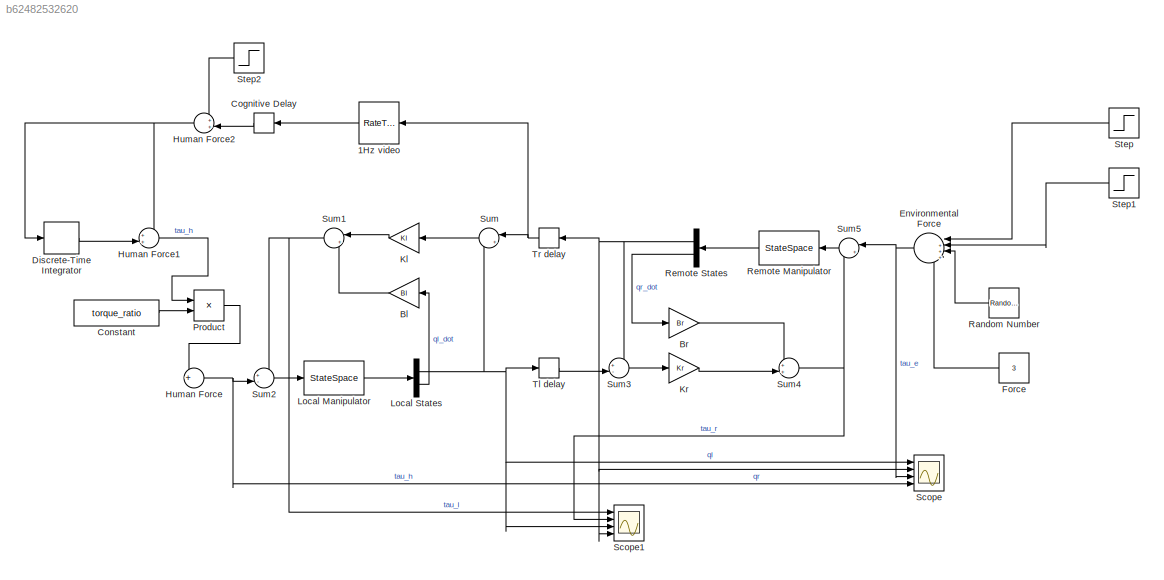
MODEL slx_b62482532620
KIND model
CONFIG AbsTol = auto
CONFIG EnableMultiTasking = off
CONFIG FixedStep = auto
CONFIG MaxStep = auto
CONFIG MinStep = auto
CONFIG RelTol = 1e-3
CONFIG SampleTimeConstraint = Unconstrained
CONFIG SolverName = VariableStepAuto
CONFIG StartTime = 0.0
CONFIG StopTime = 200
BLOCK [RateTransition] 1Hz video
  OutPortSampleTime = 1
BLOCK [Gain] Bl
  Gain = Bl
BLOCK [Gain] Br
  Gain = Br
BLOCK [TransportDelay] Cognitive Delay
  DelayTime = .5
  Ports = [1, 1]
BLOCK [Constant] Constant
  Value = torque_ratio
BLOCK [DiscreteIntegrator] Discrete-Time Integrator
  ICPrevOutput = DiscIntNeverNeededParam
  ICPrevScaledInput = DiscIntNeverNeededParam
  InitialConditionSetting = Auto
  Ports = [1, 1]
  gainval = .025
BLOCK [Sum] Environmental Force
  Inputs = |++++
  NameLocation = top
  Ports = [4, 1]
BLOCK [Constant] Force
  Value = 3
BLOCK [Sum] Human Force
  Inputs = +|
  Ports = [1, 1]
BLOCK [Sum] Human Force1
  Inputs = ++|
  Ports = [2, 1]
BLOCK [Sum] Human Force2
  Inputs = ++|
  Ports = [2, 1]
BLOCK [Gain] Kl
  Gain = Kl
BLOCK [Gain] Kr
  Gain = Kr
BLOCK [StateSpace] Local Manipulator
  A = A
  B = B
  C = C
  D = D
  InitialCondition = 0
  Ports = [1, 1]
BLOCK [Demux] Local States
  Outputs = 2
  Ports = [1, 2]
BLOCK [Product] Product
  Ports = [2, 1]
BLOCK [RandomNumber] Random Number
  SampleTime = 0.1
  Seed = 6
  Variance = 2
BLOCK [StateSpace] Remote Manipulator
  A = A1
  B = B1
  C = C1
  D = D1
  InitialCondition = 0
  Ports = [1, 1]
BLOCK [Demux] Remote States
  Outputs = 2
  Ports = [1, 2]
BLOCK [Scope] Scope
  Floating = off
  NumInputPorts = 4
  Ports = [4]
  ScopeSpecificationString = Simulink.scopes.TimeScopeBlockCfg('CurrentConfiguration', extmgr.ConfigurationSet(extmgr.Configuration('Core','General UI',true),extmgr.Configuration('Core','Source UI',true),extmgr.Configuration('Sources','WiredSimulink',true),extmgr.Configuration('Visuals','Time Domain',true,'SerializedDisplays',{struct('MinYLimReal','-39.1349','MaxYLimReal','31.87799','YLabelReal','','MinYLimMag','0.00000','Max...<+1417ch>
BLOCK [Scope] Scope1
  Floating = off
  NumInputPorts = 4
  Ports = [4]
  ScopeSpecificationString = Simulink.scopes.TimeScopeBlockCfg('CurrentConfiguration', extmgr.ConfigurationSet(extmgr.Configuration('Core','General UI',true),extmgr.Configuration('Core','Source UI',true),extmgr.Configuration('Sources','WiredSimulink',true,'DataLoggingVariableName','ScopeData1'),extmgr.Configuration('Visuals','Time Domain',true,'SerializedDisplays',{struct('MinYLimReal','-5.02902','MaxYLimReal','30.51631','YLa...<+1458ch>
BLOCK [Step] Step
  After = stp
  SampleTime = 0
  Time = stp_start
BLOCK [Step] Step1
  After = -stp
  SampleTime = 0
  Time = stp_end
BLOCK [Step] Step2
  After = 15
  SampleTime = 0
  Time = 60
BLOCK [Sum] Sum
  Inputs = |+-
  Ports = [2, 1]
BLOCK [Sum] Sum1
  Inputs = |+-
  Ports = [2, 1]
BLOCK [Sum] Sum2
  Inputs = +-|
  Ports = [2, 1]
BLOCK [Sum] Sum3
  Inputs = +-|
  Ports = [2, 1]
BLOCK [Sum] Sum4
  Inputs = ++|
  Ports = [2, 1]
BLOCK [Sum] Sum5
  Inputs = |+-
  Ports = [2, 1]
BLOCK [TransportDelay] Tl delay
  DelayTime = Tl
  Ports = [1, 1]
BLOCK [TransportDelay] Tr delay
  DelayTime = Tr
  Ports = [1, 1]
LINE 1Hz video:1 -> Cognitive Delay:1
LINE Bl:1 -> Sum1:2
LINE Br:1 -> Sum4:1
LINE Cognitive Delay:1 -> Human Force2:2
LINE Constant:1 -> Product:2
LINE Discrete-Time Integrator:1 -> Human Force1:2
NET Environmental Force:1 -> Scope:3, Sum5:1
LINE Force:1 -> Environmental Force:4
LINE Human Force1:1 -> Product:1
NET Human Force2:1 -> Discrete-Time Integrator:1, Human Force1:1
NET Human Force:1 -> Scope:4, Sum2:2
LINE Kl:1 -> Sum1:1
LINE Kr:1 -> Sum4:2
LINE Local Manipulator:1 -> Local States:1
NET Local States:1 -> Scope1:3, Scope:1, Sum:2, Tl delay:1
LINE Local States:2 -> Bl:1
LINE Product:1 -> Human Force:1
LINE Random Number:1 -> Environmental Force:3
LINE Remote Manipulator:1 -> Remote States:1
NET Remote States:1 -> Scope1:4, Scope:2, Sum3:1, Tr delay:1
LINE Remote States:2 -> Br:1
LINE Step1:1 -> Environmental Force:2
LINE Step2:1 -> Human Force2:1
LINE Step:1 -> Environmental Force:1
NET Sum1:1 -> Scope1:1, Sum2:1
LINE Sum2:1 -> Local Manipulator:1
LINE Sum3:1 -> Kr:1
NET Sum4:1 -> Scope1:2, Sum5:2
LINE Sum5:1 -> Remote Manipulator:1
LINE Sum:1 -> Kl:1
LINE Tl delay:1 -> Sum3:2
NET Tr delay:1 -> 1Hz video:1, Sum:1
note: NET lines group one-source signal fan-out (src -> all destinations, sorted); 1:1 wires keep LINE
